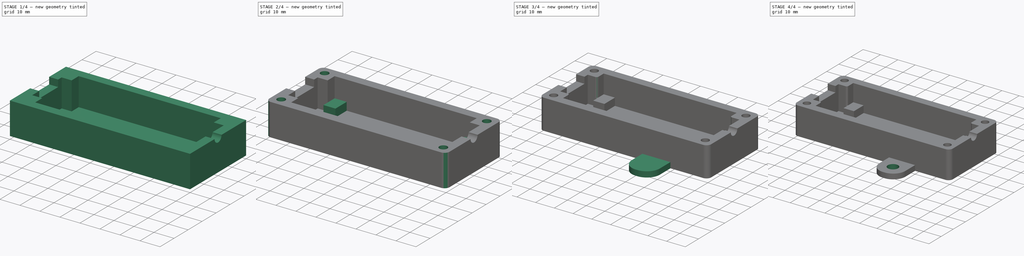
[diagram: build sequence overview — one tinted view per stage of 4, left to right]
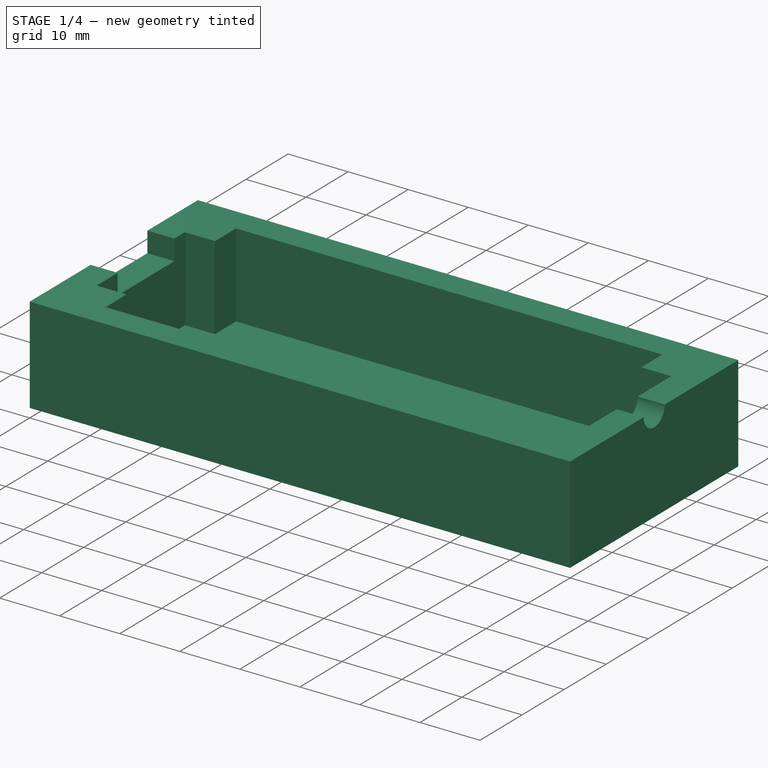
[diagram: stage 1 of 4 — iso view after this stage's code; geometry added in this stage tinted green]
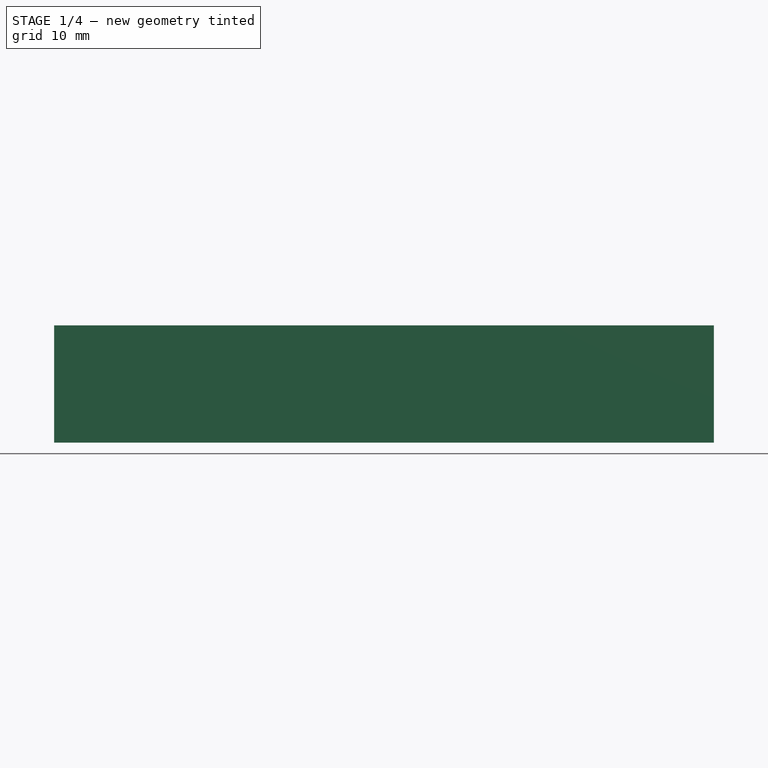
[diagram: stage 1 of 4 — front view after this stage's code; geometry added in this stage tinted green]
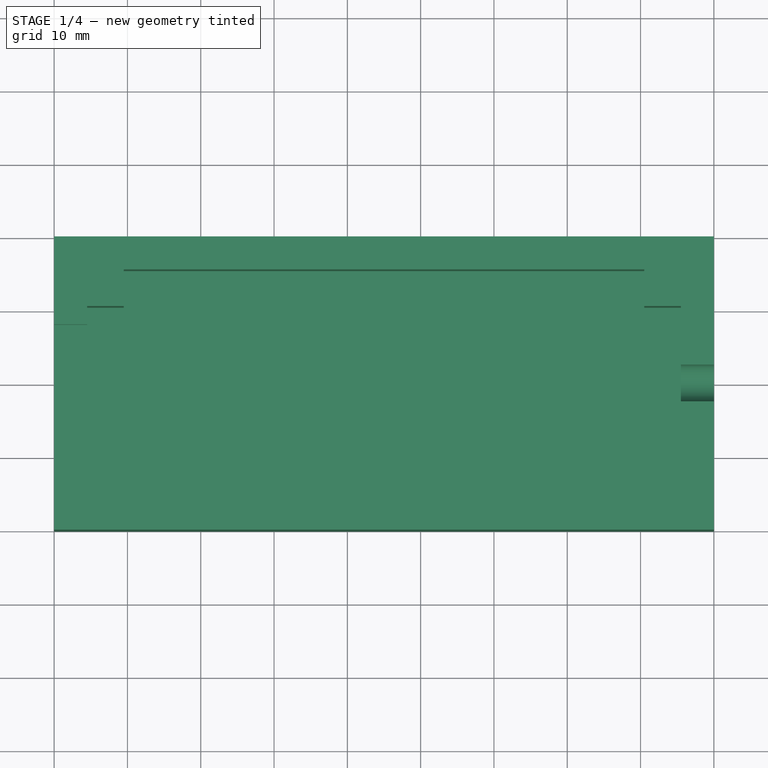
[diagram: stage 1 of 4 — top view after this stage's code; geometry added in this stage tinted green]
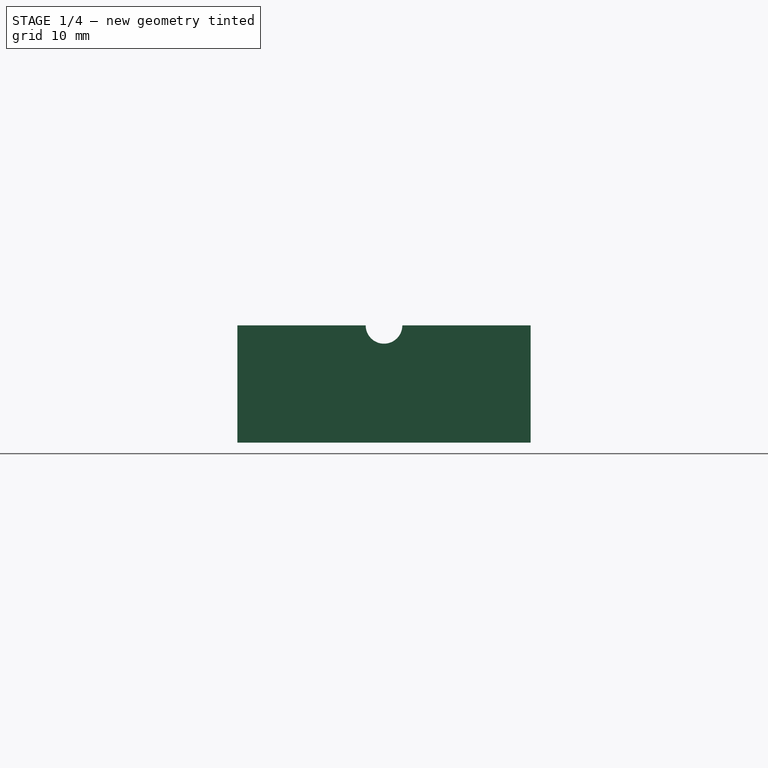
[diagram: stage 1 of 4 — right view after this stage's code; geometry added in this stage tinted green]
FCSTD DOCUMENT  (FreeCAD 0.21R33771 (Git))
Label: New-USBAIS
License: All rights reserved
LicenseURL: https://en.wikipedia.org/wiki/All_rights_reserved
objects: Sketcher::SketchObject×10, PartDesign::Pad×4, PartDesign::Pocket×4, PartDesign::Fillet×4, PartDesign::Hole×2, PartDesign::Body×1
note: 39 computed .brp shape members not serialized (recipe doc carries the construction recipe); baked Part::Feature solids carry a one-line shape summary decoded from their .brp

FEATURE [Sketcher::SketchObject] Sketch
  FullyConstrained = true
  MapMode = 5
  Support = -> [XY_Plane]
  sketch-geometry (4):
    g0: LineSegment StartX=0 StartY=40 StartZ=0 EndX=90 EndY=40 EndZ=0
    g1: LineSegment StartX=0 StartY=0 StartZ=0 EndX=90 EndY=0 EndZ=0
    g2: LineSegment StartX=0 StartY=40 StartZ=0 EndX=0 EndY=0 EndZ=0
    g3: LineSegment StartX=90 StartY=40 StartZ=0 EndX=90 EndY=0 EndZ=0
  constraints (12):
    c: Horizontal(g0)
    c: Horizontal(g1)
    c: Vertical(g2)
    c: Vertical(g3)
    c: Equal(g0,g1)
    c: Equal(g2,g3)
    c: DistanceX(g0,g0) = 90
    c: DistanceY(g3,g3) = 40
    c: Coincident(g2,g-1)
    c: Coincident(g1,g2)
    c: Coincident(g0,g2)
    c: Coincident(g3,g0)
FEATURE [PartDesign::Pad] Pad
  Direction = (0,0,1)
  Length = 16
  Length2 = 10
  Profile = -> Sketch
  ReferenceAxis = -> Sketch [N_Axis]
  Type = 0
FEATURE [Sketcher::SketchObject] Sketch001  label="SideWalls"
  ExternalGeometry = -> [Pad]
  FullyConstrained = true
  MapMode = 5
  Placement = pos=(0,0,16) rot=(0,0,1;0rad)
  Support = -> [Pad]
  sketch-geometry (17):
    g0: LineSegment StartX=4.5 StartY=30.5 StartZ=0 EndX=4.5 EndY=9.5 EndZ=0
    g1: LineSegment StartX=9.5 StartY=35.5 StartZ=0 EndX=80.5 EndY=35.5 EndZ=0
    g2: LineSegment StartX=9.5 StartY=4.5 StartZ=0 EndX=80.5 EndY=4.5 EndZ=0
    g3: LineSegment StartX=85.5 StartY=30.5 StartZ=0 EndX=85.5 EndY=9.5 EndZ=0
    g4: GeomPoint X=4.5 Y=30.5 Z=0
    g5: GeomPoint X=9.5 Y=35.5 Z=0
    g6: LineSegment StartX=9.5 StartY=35.5 StartZ=0 EndX=9.5 EndY=30.5 EndZ=0
    g7: LineSegment StartX=4.5 StartY=30.5 StartZ=0 EndX=9.5 EndY=30.5 EndZ=0
    g8: GeomPoint X=9.5 Y=9.5 Z=0
    g9: LineSegment StartX=4.5 StartY=9.5 StartZ=0 EndX=9.5 EndY=9.5 EndZ=0
    g10: LineSegment StartX=9.5 StartY=9.5 StartZ=0 EndX=9.5 EndY=4.5 EndZ=0
    g11: GeomPoint X=80.5 Y=30.5 Z=0
    g12: LineSegment StartX=80.5 StartY=30.5 StartZ=0 EndX=80.5 EndY=35.5 EndZ=0
    g13: LineSegment StartX=80.5 StartY=30.5 StartZ=0 EndX=85.5 EndY=30.5 EndZ=0
    g14: GeomPoint X=80.5 Y=9.5 Z=0
    g15: LineSegment StartX=80.5 StartY=9.5 StartZ=0 EndX=80.5 EndY=4.5 EndZ=0
    g16: LineSegment StartX=80.5 StartY=9.5 StartZ=0 EndX=85.5 EndY=9.5 EndZ=0
  constraints (44):
    c: Vertical(g0)
    c: Horizontal(g1)
    c: Horizontal(g2)
    c: Vertical(g3)
    c: PointOnObject(g4,g0)
    c: PointOnObject(g5,g1)
    c: Coincident(g6,g5)
    c: Vertical(g6)
    c: Distance(g6) = 5
    c: Coincident(g7,g4)
    c: Coincident(g7,g6)
    c: Horizontal(g7)
    c: PointOnObject(g1,g6)
    c: PointOnObject(g0,g7)
    c: Distance(g8,g2) = 5
    c: Distance(g8,g0) = 5
    c: Coincident(g9,g8)
    c: Coincident(g10,g9)
    c: Vertical(g10)
    c: Coincident(g0,g9)
    c: Coincident(g2,g10)
    c: Distance(g11,g1) = 5
    c: Distance(g11,g3) = 5
    c: Coincident(g12,g11)
    c: Vertical(g12)
    c: Coincident(g13,g12)
    c: Horizontal(g13)
    c: Perpendicular(g13,g12)
    c: Coincident(g1,g12)
    c: Coincident(g3,g13)
    c: Distance(g3,g-4) = 4.5
    c: Distance(g14,g3) = 5
    c: Distance(g14,g2) = 5
    c: Coincident(g15,g14)
    c: Vertical(g15)
    c: Coincident(g16,g15)
    c: Coincident(g2,g15)
    c: Coincident(g3,g16)
    c: Distance(g2,g-6) = 4.5
    c: Distance(g1,g-3) = 4.5
    c: Perpendicular(g16,g15)
    c: Distance(g0,g-5) = 4.5
    c: Perpendicular(g10,g9)
    c: Distance(g7) = 5
FEATURE [PartDesign::Pocket] Pocket
  BaseFeature = -> Pad
  Direction = (0,0,-1)
  Length = 14
  Length2 = 5
  Profile = -> Sketch001
  ReferenceAxis = -> Sketch001 [N_Axis]
  Type = 0
FEATURE [Sketcher::SketchObject] Sketch002  label="PowerHole"
  ExternalGeometry = -> [Pocket]
  FullyConstrained = true
  MapMode = 5
  Placement = pos=(90,0,0) rot=(0.57735,0.57735,0.57735;2.0944rad)
  Support = -> [Pocket]
  sketch-geometry (2):
    g0: ArcOfCircle CenterX=20 CenterY=16 CenterZ=0 NormalX=0 NormalY=0 NormalZ=1 AngleXU=0 Radius=2.5 StartAngle=3.14159 EndAngle=6.28319
    g1: LineSegment StartX=17.5 StartY=16 StartZ=0 EndX=22.5 EndY=16 EndZ=0
  constraints (7):
    c: Radius(g0) = 2.5
    c: Distance(g0,g-4) = 20
    c: PointOnObject(g0,g-3)
    c: PointOnObject(g0,g-3)
    c: Coincident(g1,g0)
    c: Coincident(g1,g0)
    c: Distance(g1) = 5
FEATURE [PartDesign::Pocket] Pocket001
  BaseFeature = -> Pocket
  Direction = (-1,0,0)
  Length = 6
  Length2 = 5
  Profile = -> Sketch002
  ReferenceAxis = -> Sketch002 [N_Axis]
  Type = 0
FEATURE [Sketcher::SketchObject] Sketch003  label="USBHole"
  ExternalGeometry = -> [Pocket001]
  FullyConstrained = true
  MapMode = 5
  Placement = pos=(0,0,0) rot=(0.57735,-0.57735,-0.57735;2.0944rad)
  Support = -> [Pocket001]
  sketch-geometry (4):
    g0: LineSegment StartX=-28 StartY=12.6 StartZ=0 EndX=-14.5 EndY=12.6 EndZ=0
    g1: LineSegment StartX=-28 StartY=16 StartZ=0 EndX=-28 EndY=12.6 EndZ=0
    g2: LineSegment StartX=-14.5 StartY=16 StartZ=0 EndX=-14.5 EndY=12.6 EndZ=0
    g3: LineSegment StartX=-28 StartY=16 StartZ=0 EndX=-14.5 EndY=16 EndZ=0
  constraints (12):
    c: Distance(g0) = 13.5
    c: Vertical(g1)
    c: Vertical(g2)
    c: Distance(g1) = 3.4
    c: Coincident(g1,g0)
    c: Coincident(g2,g0)
    c: Coincident(g3,g1)
    c: Coincident(g3,g2)
    c: Horizontal(g3)
    c: Distance(g0,g-3) = 12
    c: PointOnObject(g1,g-4)
    c: Equal(g1,g2)
FEATURE [PartDesign::Pocket] Pocket002
  BaseFeature = -> Pocket001
  Direction = (1,0,0)
  Length = 6
  Length2 = 5
  Profile = -> Sketch003
  ReferenceAxis = -> Sketch003 [N_Axis]
  Type = 0
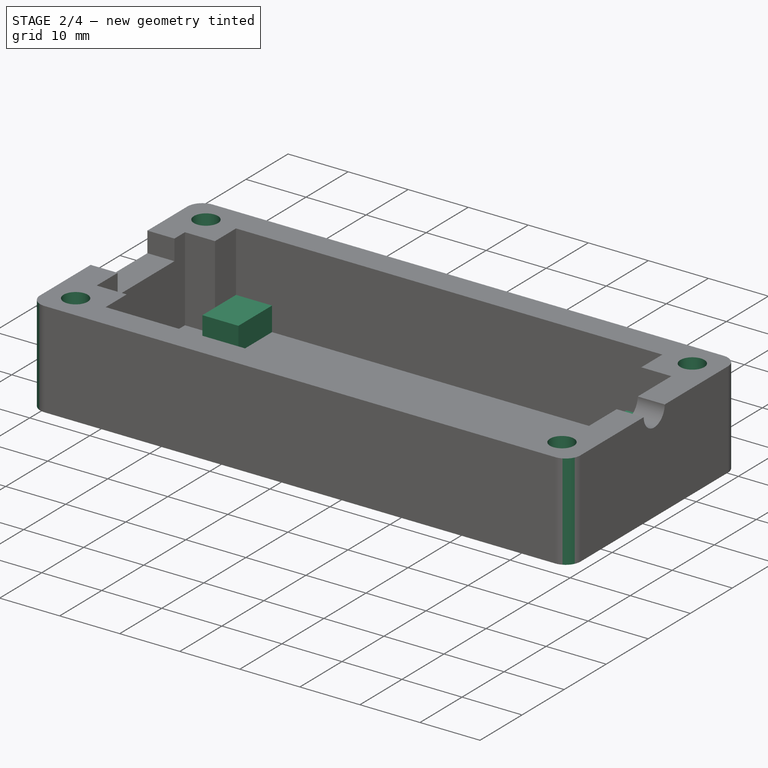
[diagram: stage 2 of 4 — iso view after this stage's code; geometry added in this stage tinted green]
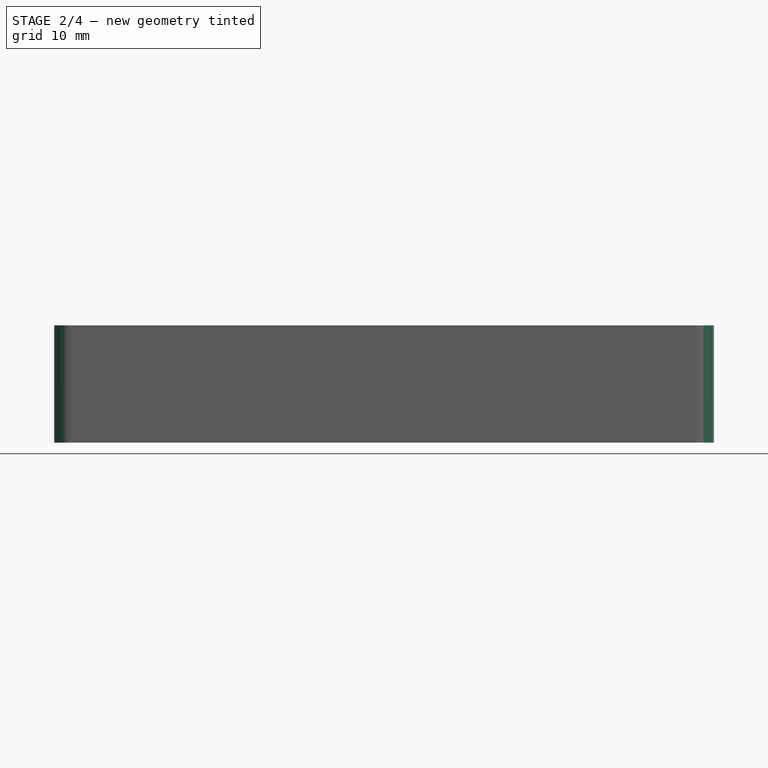
[diagram: stage 2 of 4 — front view after this stage's code; geometry added in this stage tinted green]
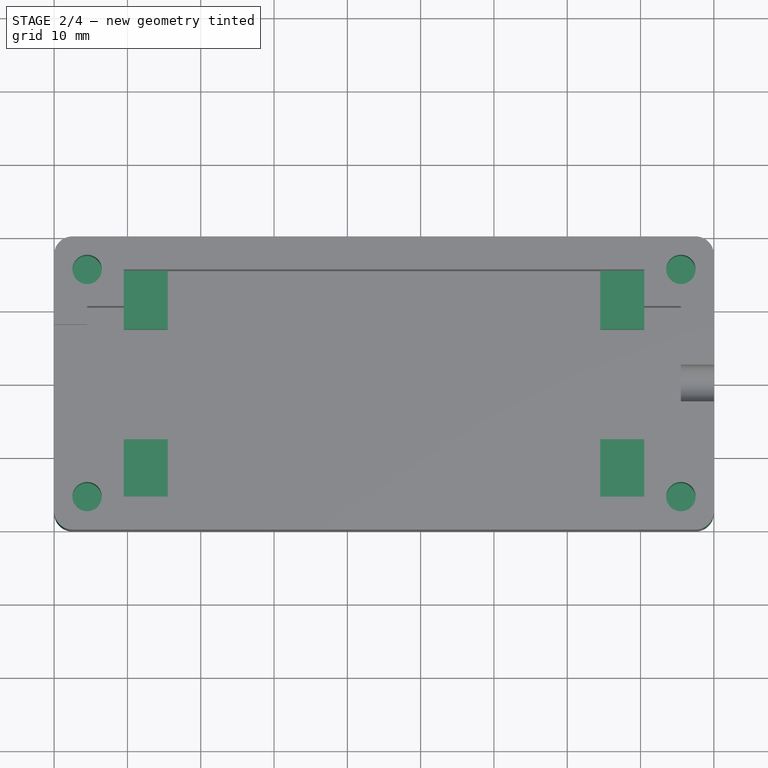
[diagram: stage 2 of 4 — top view after this stage's code; geometry added in this stage tinted green]
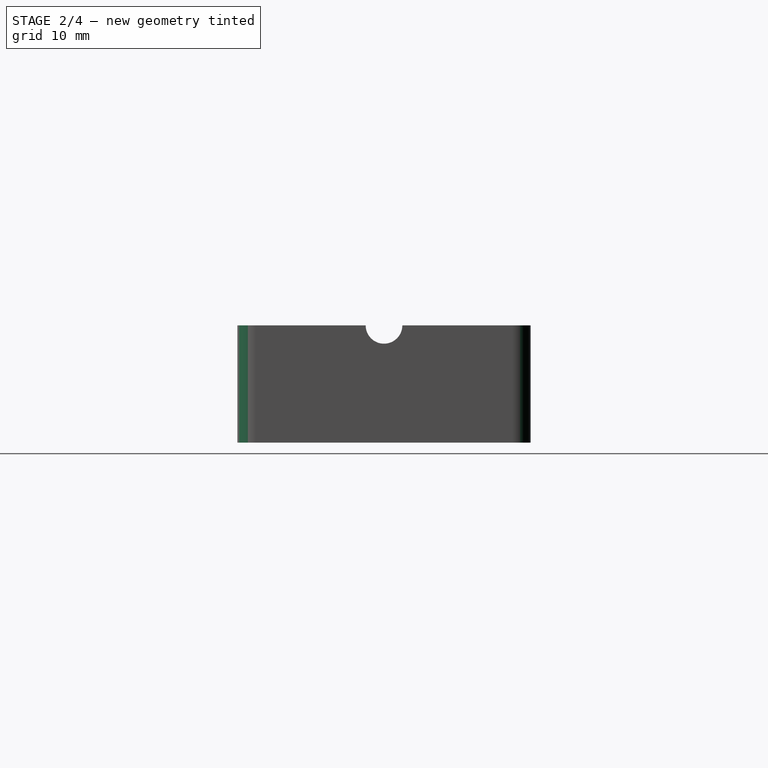
[diagram: stage 2 of 4 — right view after this stage's code; geometry added in this stage tinted green]
FEATURE [Sketcher::SketchObject] Sketch005  label="CapHoles"
  ExternalGeometry = -> [Pocket002]
  FullyConstrained = true
  MapMode = 5
  Placement = pos=(0,0,16) rot=(0,0,1;0rad)
  Support = -> [Pocket002]
  sketch-geometry (4):
    g0: Circle CenterX=4.5 CenterY=35.5 CenterZ=0 NormalX=0 NormalY=0 NormalZ=1 AngleXU=0 Radius=2
    g1: Circle CenterX=4.5 CenterY=4.5 CenterZ=0 NormalX=0 NormalY=0 NormalZ=1 AngleXU=0 Radius=2
    g2: Circle CenterX=85.5 CenterY=35.5 CenterZ=0 NormalX=0 NormalY=0 NormalZ=1 AngleXU=0 Radius=2
    g3: Circle CenterX=85.5 CenterY=4.5 CenterZ=0 NormalX=0 NormalY=0 NormalZ=1 AngleXU=0 Radius=2
  constraints (12):
    c: Radius(g0) = 2
    c: Equal(g0,g2)
    c: Equal(g0,g3)
    c: Equal(g0,g1)
    c: Distance(g0,g-11) = 4.5
    c: Distance(g0,g-12) = 4.5
    c: Distance(g1,g-16) = 4.5
    c: Distance(g1,g-15) = 4.5
    c: Distance(g3,g-14) = 4.5
    c: Distance(g3,g-15) = 4.5
    c: Distance(g2,g-13) = 4.5
    c: Distance(g2,g-12) = 4.5
FEATURE [PartDesign::Pocket] Pocket003
  BaseFeature = -> Pocket002
  Direction = (0,0,-1)
  Length = 10
  Length2 = 5
  Profile = -> Sketch005
  ReferenceAxis = -> Sketch005 [N_Axis]
  Type = 0
FEATURE [Sketcher::SketchObject] Sketch006  label="PlatePads"
  ExternalGeometry = -> [Pocket003]
  FullyConstrained = true
  MapMode = 5
  Placement = pos=(0,0,2) rot=(0,0,1;0rad)
  Support = -> [Pocket003]
  sketch-geometry (16):
    g0: LineSegment StartX=80.5 StartY=35.5 StartZ=0 EndX=74.5 EndY=35.5 EndZ=0
    g1: LineSegment StartX=74.5 StartY=35.5 StartZ=0 EndX=74.5 EndY=27.5 EndZ=0
    g2: LineSegment StartX=74.5 StartY=27.5 StartZ=0 EndX=80.5 EndY=27.5 EndZ=0
    g3: LineSegment StartX=80.5 StartY=27.5 StartZ=0 EndX=80.5 EndY=35.5 EndZ=0
    g4: LineSegment StartX=9.5 StartY=12.5 StartZ=0 EndX=15.5 EndY=12.5 EndZ=0
    g5: LineSegment StartX=15.5 StartY=12.5 StartZ=0 EndX=15.5 EndY=4.5 EndZ=0
    g6: LineSegment StartX=15.5 StartY=4.5 StartZ=0 EndX=9.5 EndY=4.5 EndZ=0
    g7: LineSegment StartX=9.5 StartY=4.5 StartZ=0 EndX=9.5 EndY=12.5 EndZ=0
    g8: LineSegment StartX=15.5 StartY=35.5 StartZ=0 EndX=9.5 EndY=35.5 EndZ=0
    g9: LineSegment StartX=9.5 StartY=35.5 StartZ=0 EndX=9.5 EndY=27.5 EndZ=0
    g10: LineSegment StartX=9.5 StartY=27.5 StartZ=0 EndX=15.5 EndY=27.5 EndZ=0
    g11: LineSegment StartX=15.5 StartY=27.5 StartZ=0 EndX=15.5 EndY=35.5 EndZ=0
    g12: LineSegment StartX=74.5 StartY=12.5 StartZ=0 EndX=80.5 EndY=12.5 EndZ=0
    g13: LineSegment StartX=80.5 StartY=12.5 StartZ=0 EndX=80.5 EndY=4.5 EndZ=0
    g14: LineSegment StartX=80.5 StartY=4.5 StartZ=0 EndX=74.5 EndY=4.5 EndZ=0
    g15: LineSegment StartX=74.5 StartY=4.5 StartZ=0 EndX=74.5 EndY=12.5 EndZ=0
  constraints (44):
    c: Coincident(g0,g1)
    c: Coincident(g1,g2)
    c: Coincident(g2,g3)
    c: Coincident(g3,g0)
    c: Horizontal(g0)
    c: Horizontal(g2)
    c: Vertical(g1)
    c: Vertical(g3)
    c: Distance(g3) = 8
    c: Distance(g0) = 6
    c: Coincident(g4,g5)
    c: Coincident(g5,g6)
    c: Coincident(g6,g7)
    c: Coincident(g7,g4)
    c: Horizontal(g4)
    c: Horizontal(g6)
    c: Vertical(g5)
    c: Vertical(g7)
    c: Equal(g3,g7)
    c: Equal(g0,g4)
    c: Coincident(g6,g-4)
    c: Coincident(g8,g9)
    c: Coincident(g9,g10)
    c: Coincident(g10,g11)
    c: Coincident(g11,g8)
    c: Horizontal(g8)
    c: Horizontal(g10)
    c: Vertical(g9)
    c: Vertical(g11)
    c: Equal(g1,g9)
    c: Equal(g2,g10)
    c: Coincident(g12,g13)
    c: Coincident(g13,g14)
    c: Coincident(g14,g15)
    c: Coincident(g15,g12)
    c: Horizontal(g12)
    c: Horizontal(g14)
    c: Vertical(g13)
    c: Vertical(g15)
    c: Equal(g1,g15)
    c: Equal(g2,g14)
    c: Coincident(g13,g-8)
    c: Coincident(g8,g-9)
    c: Coincident(g0,g-9)
FEATURE [PartDesign::Pad] Pad001
  BaseFeature = -> Pocket003
  Direction = (0,0,1)
  Length = 4
  Length2 = 10
  Profile = -> Sketch006
  ReferenceAxis = -> Sketch006 [N_Axis]
  Type = 0
FEATURE [PartDesign::Fillet] Fillet
  Base = -> Pad001 [Edge2,Edge12,Edge44,Edge8]
  BaseFeature = -> Pad001
  Radius = 2.5
  SupportTransform = false
  UseAllEdges = false
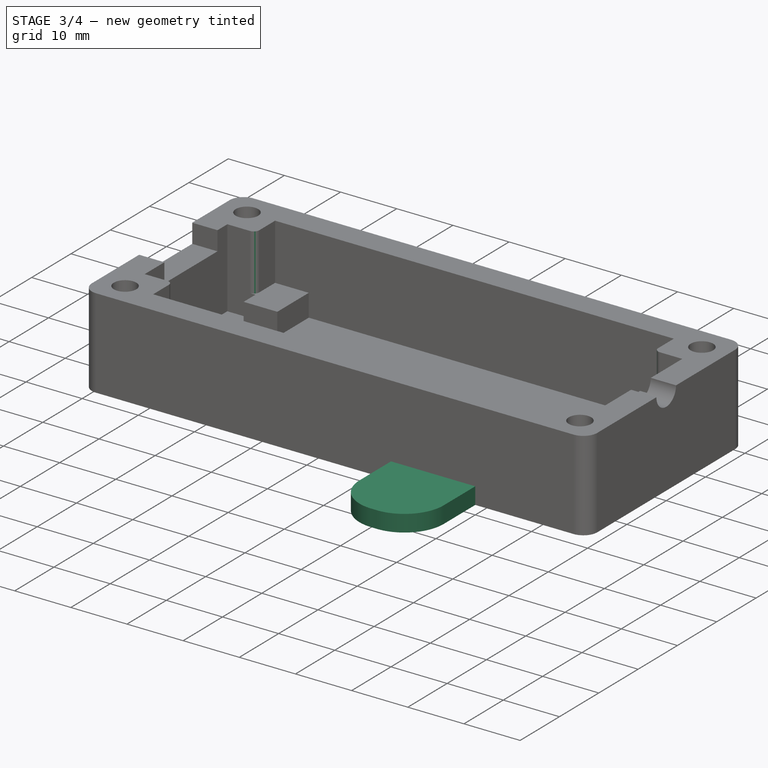
[diagram: stage 3 of 4 — iso view after this stage's code; geometry added in this stage tinted green]
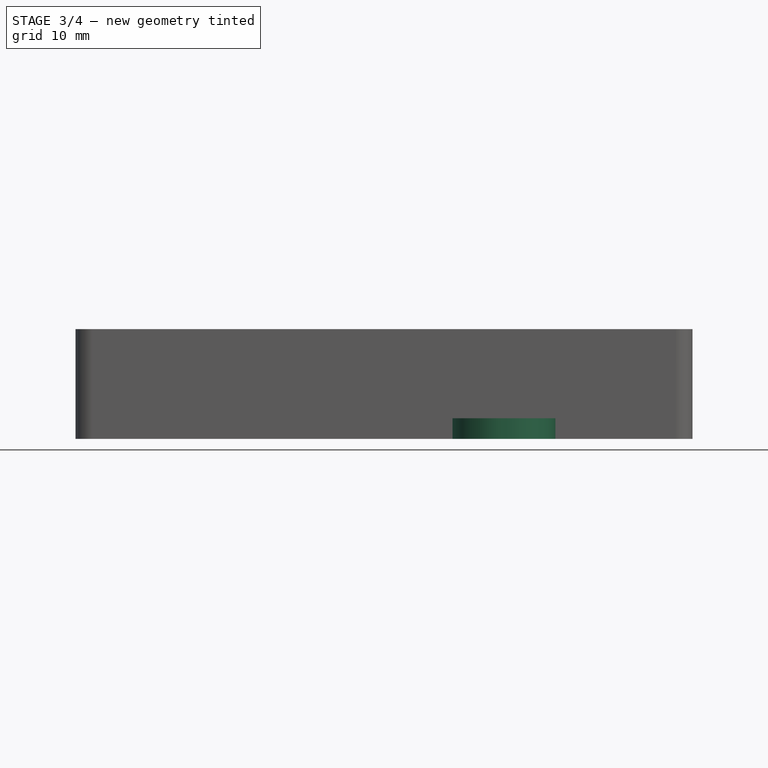
[diagram: stage 3 of 4 — front view after this stage's code; geometry added in this stage tinted green]
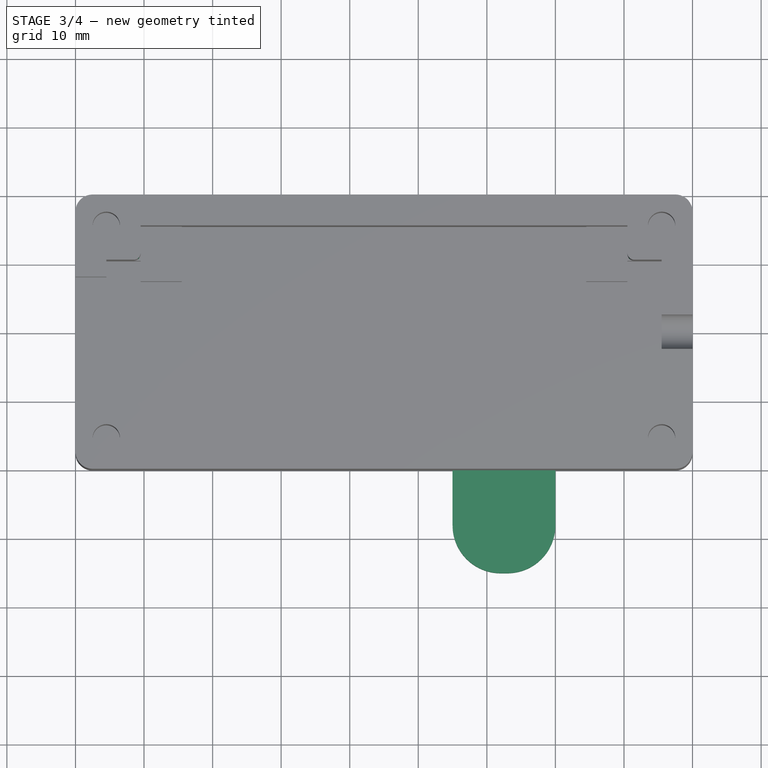
[diagram: stage 3 of 4 — top view after this stage's code; geometry added in this stage tinted green]
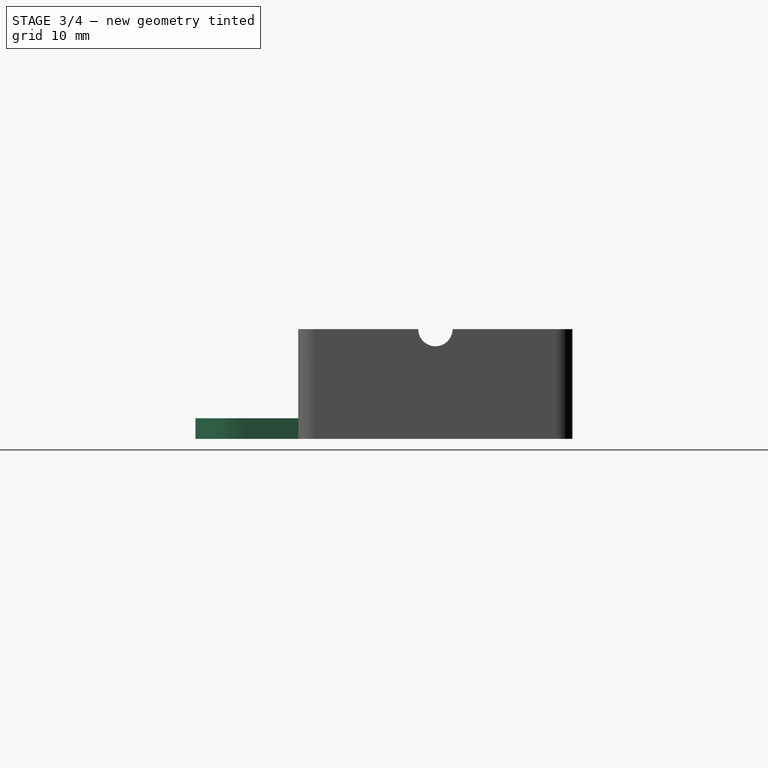
[diagram: stage 3 of 4 — right view after this stage's code; geometry added in this stage tinted green]
FEATURE [PartDesign::Fillet] Fillet001
  Base = -> Fillet [Edge65,Edge68,Edge96,Edge84]
  BaseFeature = -> Fillet
  Radius = 1
  SupportTransform = false
  UseAllEdges = false
FEATURE [Sketcher::SketchObject] Sketch007
  ExternalGeometry = -> [Fillet001]
  FullyConstrained = true
  MapMode = 5
  Placement = pos=(0,0,0) rot=(1,0,0;1.5708rad)
  Support = -> [Fillet001]
  sketch-geometry (4):
    g0: LineSegment StartX=55 StartY=0 StartZ=0 EndX=70 EndY=0 EndZ=0
    g1: LineSegment StartX=70 StartY=0 StartZ=0 EndX=70 EndY=3 EndZ=0
    g2: LineSegment StartX=70 StartY=3 StartZ=0 EndX=55 EndY=3 EndZ=0
    g3: LineSegment StartX=55 StartY=3 StartZ=0 EndX=55 EndY=0 EndZ=0
  constraints (12):
    c: Coincident(g0,g1)
    c: Coincident(g1,g2)
    c: Coincident(g2,g3)
    c: Coincident(g3,g0)
    c: Horizontal(g0)
    c: Horizontal(g2)
    c: Vertical(g1)
    c: Vertical(g3)
    c: PointOnObject(g0,g-5)
    c: DistanceY(g3,g3) = 3
    c: Distance(g2) = 15
    c: Distance(g1,g-3) = 20
FEATURE [PartDesign::Pad] Pad002
  BaseFeature = -> Fillet001
  Direction = (0,-1,2e-16)
  Length = 15
  Length2 = 10
  Profile = -> Sketch007
  ReferenceAxis = -> Sketch007 [N_Axis]
  Type = 0
FEATURE [PartDesign::Fillet] Fillet002
  Base = -> Pad002 [Edge160,Edge163]
  BaseFeature = -> Pad002
  Radius = 7
  SupportTransform = false
  UseAllEdges = false
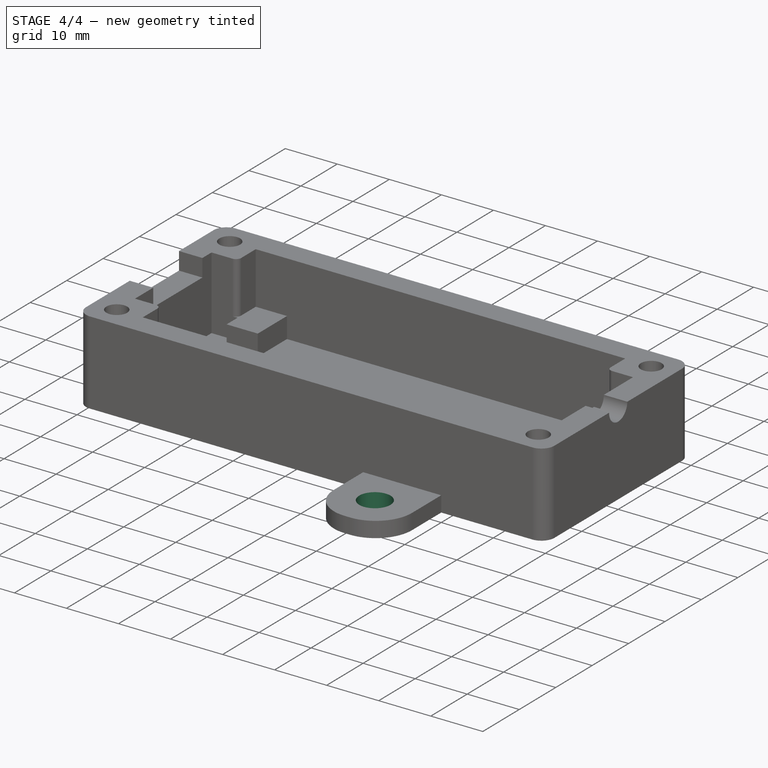
[diagram: stage 4 of 4 — iso view after this stage's code; geometry added in this stage tinted green]
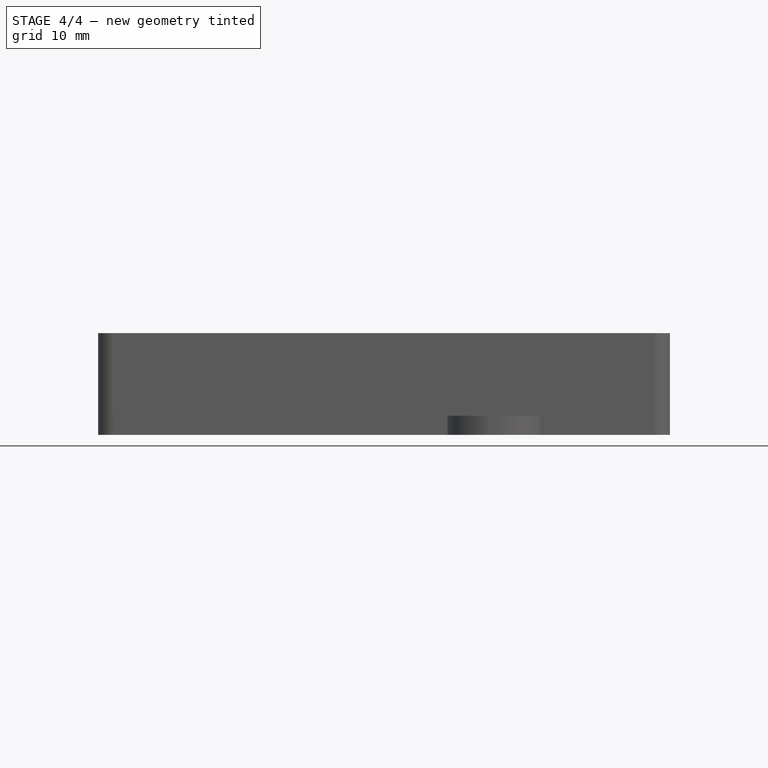
[diagram: stage 4 of 4 — front view after this stage's code; geometry added in this stage tinted green]
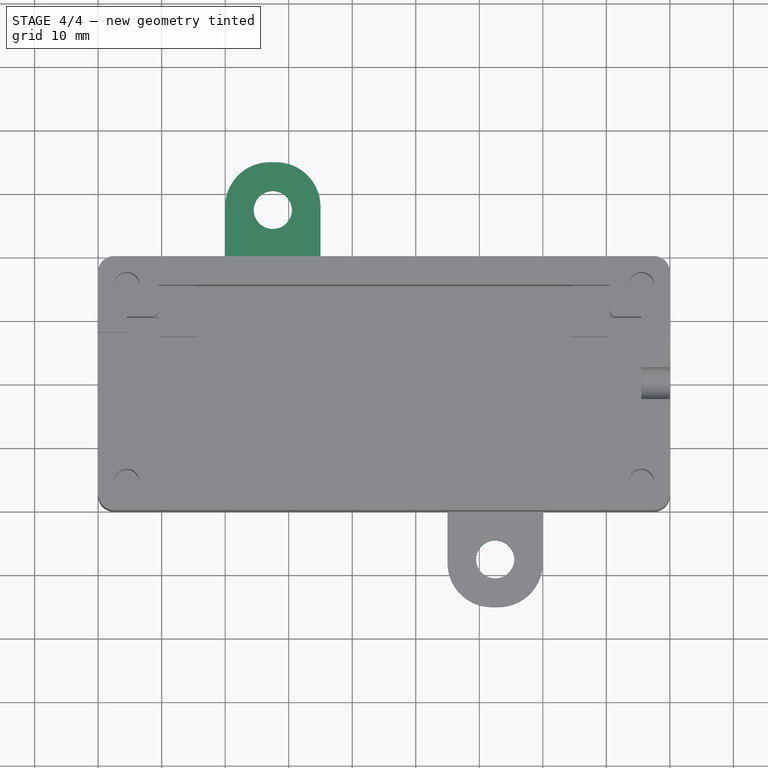
[diagram: stage 4 of 4 — top view after this stage's code; geometry added in this stage tinted green]
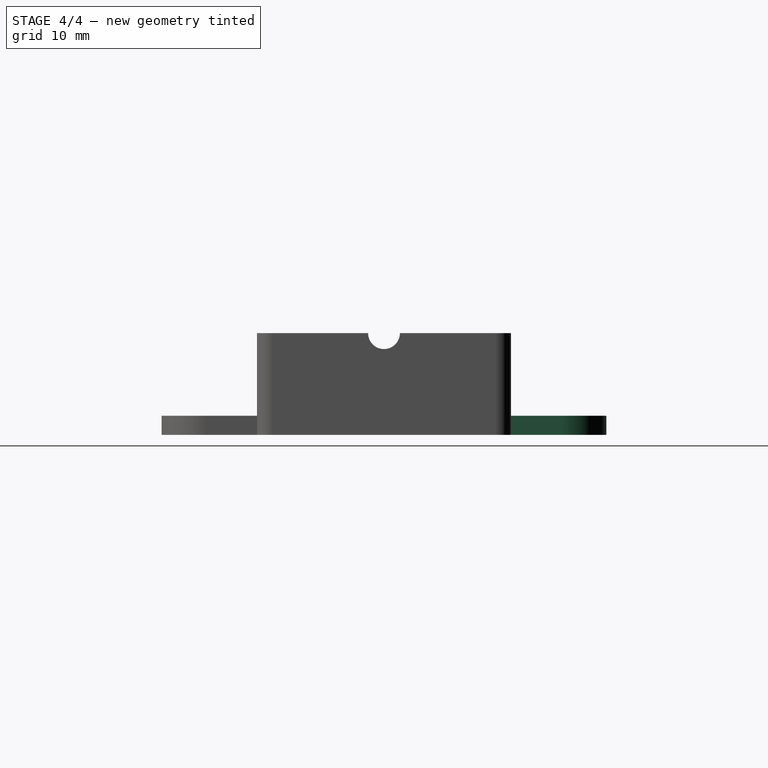
[diagram: stage 4 of 4 — right view after this stage's code; geometry added in this stage tinted green]
FEATURE [Sketcher::SketchObject] Sketch008
  ExternalGeometry = -> [Fillet002]
  FullyConstrained = true
  MapMode = 5
  Placement = pos=(0,7e-16,3) rot=(0,0,1;0rad)
  Support = -> [Fillet002]
  sketch-geometry (1):
    g0: Circle CenterX=62.5 CenterY=-7.5 CenterZ=0 NormalX=0 NormalY=0 NormalZ=1 AngleXU=0 Radius=5
  constraints (3):
    c: Radius(g0) = 5
    c: Distance(g0,g-3) = 7.5
    c: Distance(g0,g-4) = 7.5
FEATURE [PartDesign::Hole] Hole
  BaseFeature = -> Fillet002
  CustomThreadClearance = 0
  Depth = 25
  DepthType = 0
  Diameter = 6
  DrillForDepth = false
  DrillPoint = 1
  DrillPointAngle = 118
  HoleCutCountersinkAngle = 90
  HoleCutCustomValues = false
  HoleCutDepth = 0
  HoleCutDiameter = 6.1
  HoleCutType = 0
  ModelThread = false
  Profile = -> Sketch008
  Tapered = false
  TaperedAngle = 90
  ThreadClass = 0
  ThreadDepth = 25
  ThreadDepthType = 0
  ThreadDirection = 0
  ThreadFit = 0
  ThreadSize = 0
  ThreadType = 0
  Threaded = false
  UseCustomThreadClearance = false
FEATURE [Sketcher::SketchObject] Sketch009
  ExternalGeometry = -> [Hole]
  FullyConstrained = true
  MapMode = 5
  Placement = pos=(0,40,0) rot=(0,0.707107,0.707107;3.14159rad)
  Support = -> [Hole]
  sketch-geometry (4):
    g0: LineSegment StartX=-35 StartY=0 StartZ=0 EndX=-20 EndY=0 EndZ=0
    g1: LineSegment StartX=-20 StartY=0 StartZ=0 EndX=-20 EndY=3 EndZ=0
    g2: LineSegment StartX=-20 StartY=3 StartZ=0 EndX=-35 EndY=3 EndZ=0
    g3: LineSegment StartX=-35 StartY=3 StartZ=0 EndX=-35 EndY=0 EndZ=0
  constraints (12):
    c: Coincident(g0,g1)
    c: Coincident(g1,g2)
    c: Coincident(g2,g3)
    c: Coincident(g3,g0)
    c: Horizontal(g0)
    c: Horizontal(g2)
    c: Vertical(g1)
    c: Vertical(g3)
    c: PointOnObject(g0,g-3)
    c: DistanceY(g3,g3) = 3
    c: Distance(g1,g-4) = 20
    c: Distance(g2) = 15
FEATURE [PartDesign::Pad] Pad003
  BaseFeature = -> Hole
  Direction = (0,1,-2e-16)
  Length = 15
  Length2 = 10
  Profile = -> Sketch009
  ReferenceAxis = -> Sketch009 [N_Axis]
  Type = 0
FEATURE [PartDesign::Fillet] Fillet003
  Base = -> Pad003 [Edge96,Edge93]
  BaseFeature = -> Pad003
  Radius = 7
  SupportTransform = false
  UseAllEdges = false
FEATURE [Sketcher::SketchObject] Sketch010
  ExternalGeometry = -> [Fillet003]
  FullyConstrained = true
  MapMode = 5
  Placement = pos=(0,7e-16,3) rot=(0,0,1;0rad)
  Support = -> [Fillet003]
  sketch-geometry (1):
    g0: Circle CenterX=27.5 CenterY=47.5 CenterZ=0 NormalX=0 NormalY=0 NormalZ=1 AngleXU=0 Radius=5
  constraints (3):
    c: Radius(g0) = 5
    c: Distance(g0,g-4) = 7.5
    c: Distance(g0,g-3) = 7.5
FEATURE [PartDesign::Hole] Hole001
  BaseFeature = -> Fillet003
  CustomThreadClearance = 0
  Depth = 25
  DepthType = 0
  Diameter = 6
  DrillForDepth = false
  DrillPoint = 1
  DrillPointAngle = 118
  HoleCutCountersinkAngle = 90
  HoleCutCustomValues = false
  HoleCutDepth = 0
  HoleCutDiameter = 6.1
  HoleCutType = 0
  ModelThread = false
  Profile = -> Sketch010
  Tapered = false
  TaperedAngle = 90
  ThreadClass = 0
  ThreadDepth = 25
  ThreadDepthType = 0
  ThreadDirection = 0
  ThreadFit = 0
  ThreadSize = 0
  ThreadType = 0
  Threaded = false
  UseCustomThreadClearance = false
FEATURE [PartDesign::Body] Body  label="UBS-bottomPart"
  Group = -> [Sketch,Pad,Sketch001,Pocket,Sketch002,Pocket001,Sketch003,Pocket002,Sketch005,Pocket003,Sketch006,Pad001,Fillet,Fillet001,Sketch007,Pad002,Fillet002,Sketch008,Hole,Sketch009,Pad003,Fillet003,Sketch010,Hole001]
  Origin = -> Origin
  Tip = -> Hole001
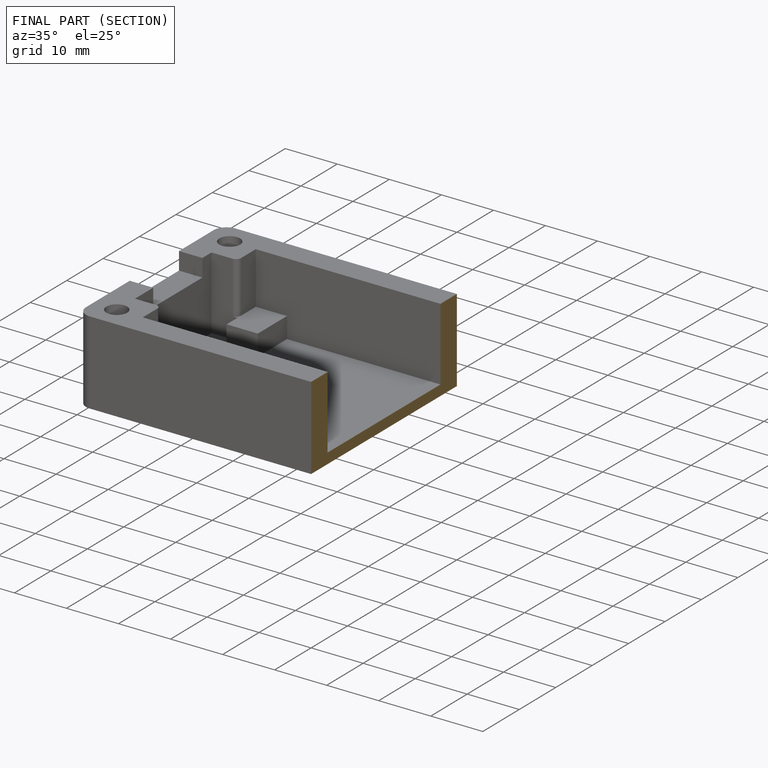
[diagram: finished part — half-section view (interior)]
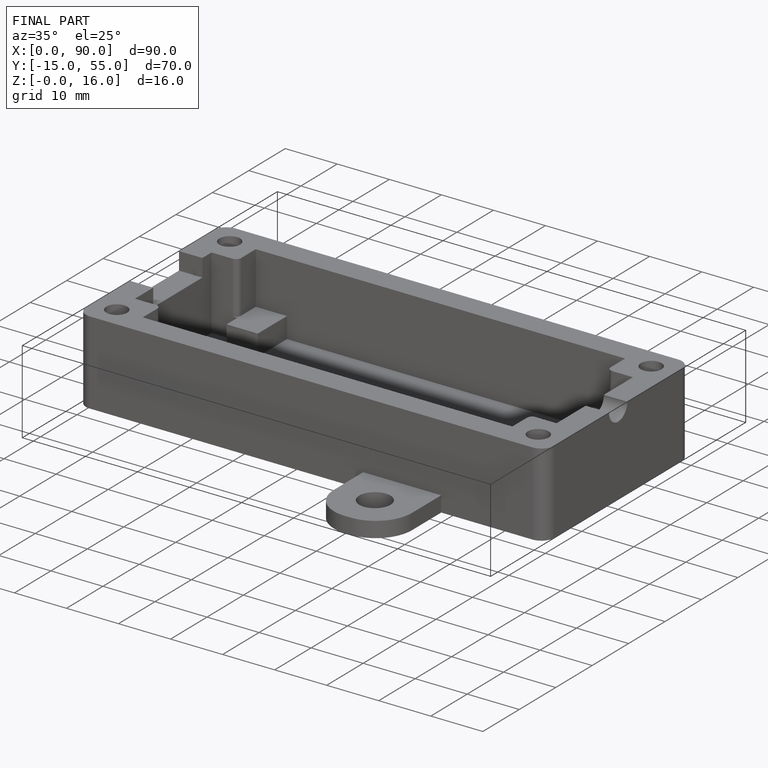
[diagram: finished part — iso view with bounding-box wireframe]
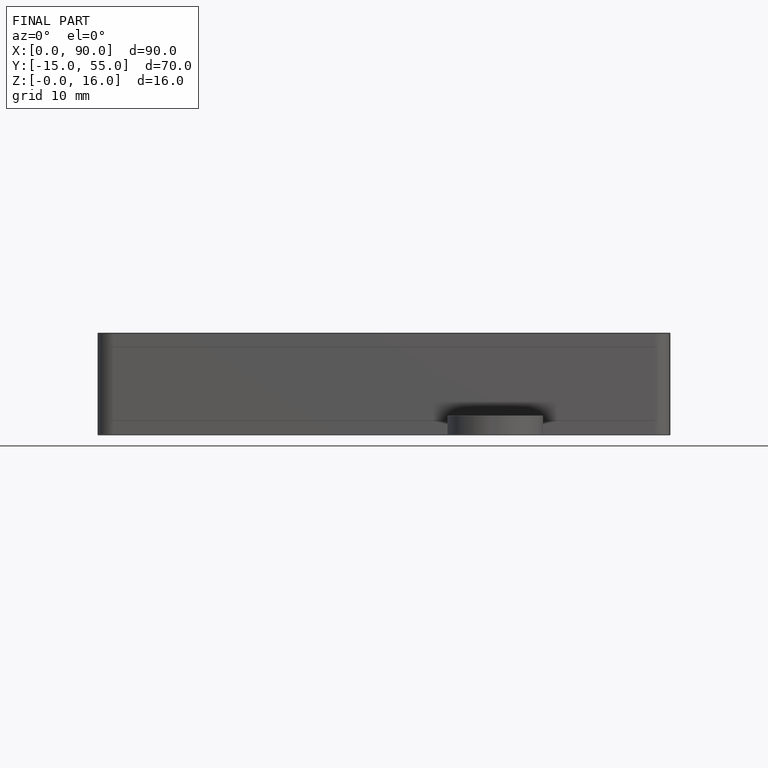
[diagram: finished part — front view with bounding-box wireframe]
